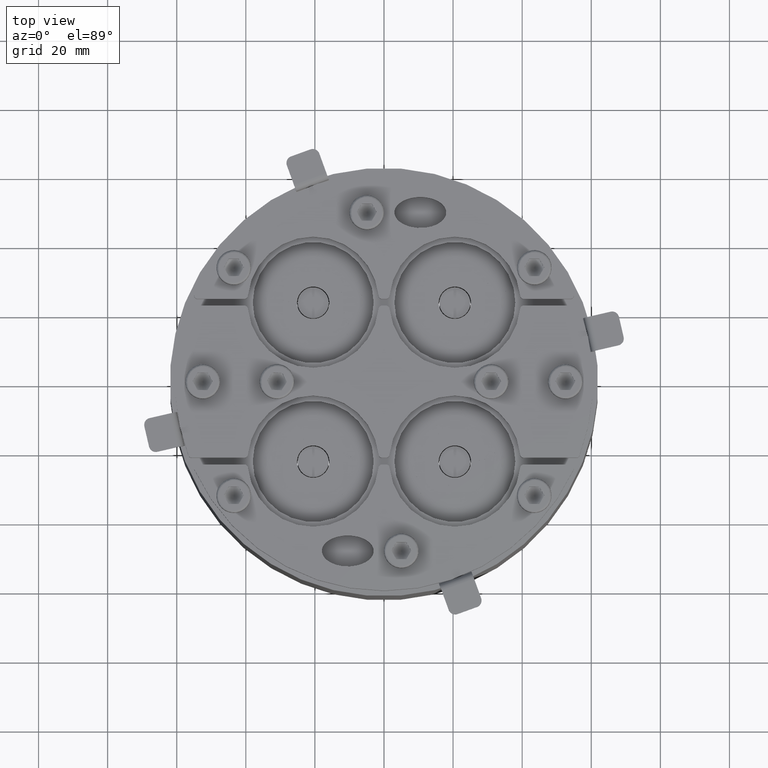
[diagram: clean part render]
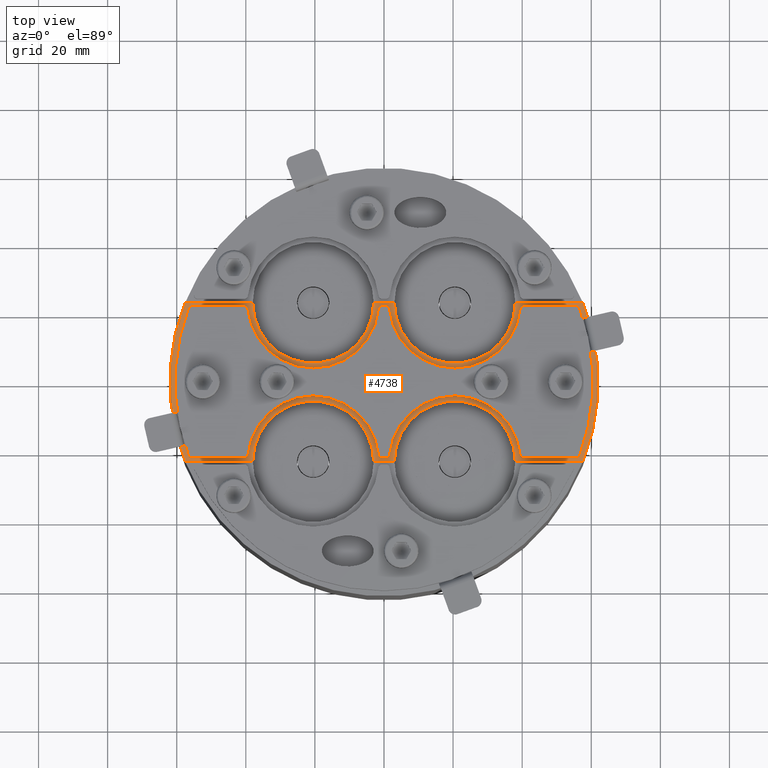
[diagram: same view with one face highlighted and labeled with its STEP entity id]
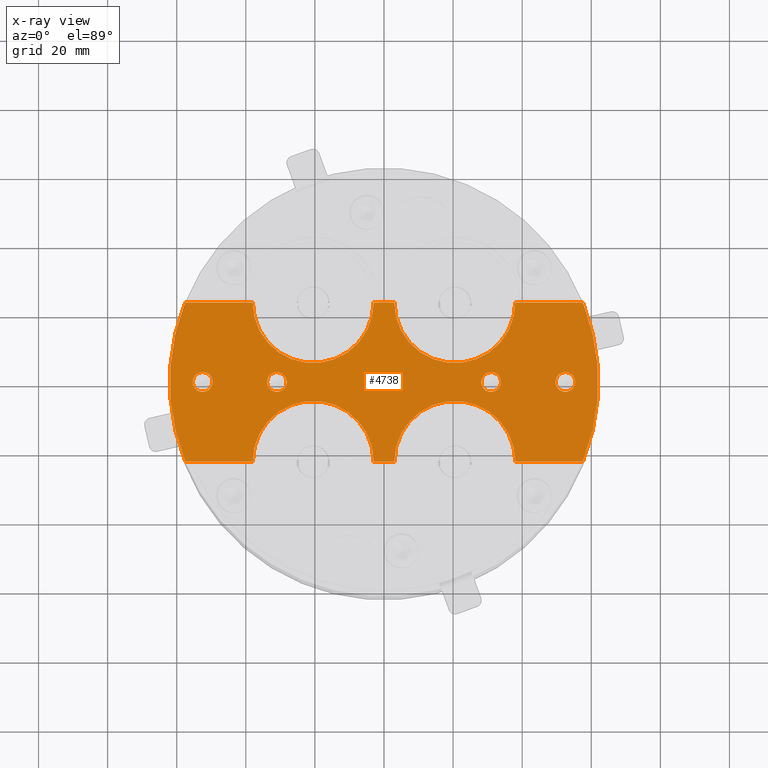
[diagram: x-ray of the same camera — body ghosted, the highlighted face saturated]
A machine part, top view. The second image highlights one B-rep face of the part: STEP entity #4738.
The next image is the same camera in x-ray: the body ghosted, the highlighted face saturated — about 0% of this face is hidden behind the body in this view.
In plain terms, the highlighted planar face has unit normal (0, -0, 1).
Its self-contained STEP definition (entity closure, byte-faithful):
#379=FACE_BOUND('',#998,.T.);
#380=FACE_BOUND('',#999,.T.);
#381=FACE_BOUND('',#1000,.T.);
#382=FACE_BOUND('',#1001,.T.);
#460=PLANE('',#5472);
#693=FACE_OUTER_BOUND('',#997,.T.);
#997=EDGE_LOOP('',(#3975,#3976,#3977,#3978,#3979,#3980,#3981,#3982,#3983,
#3984,#3985,#3986));
#998=EDGE_LOOP('',(#3987));
#999=EDGE_LOOP('',(#3988));
#1000=EDGE_LOOP('',(#3989));
#1001=EDGE_LOOP('',(#3990));
#1324=LINE('',#8067,#1691);
#1328=LINE('',#8079,#1695);
#1332=LINE('',#8091,#1699);
#1336=LINE('',#8103,#1703);
#1340=LINE('',#8115,#1707);
#1344=LINE('',#8127,#1711);
#1691=VECTOR('',#6568,10.);
#1695=VECTOR('',#6580,10.);
#1699=VECTOR('',#6592,10.);
#1703=VECTOR('',#6604,10.);
#1707=VECTOR('',#6616,10.);
#1711=VECTOR('',#6628,10.);
#2022=CIRCLE('',#5438,2.85);
#2024=CIRCLE('',#5441,2.85);
#2026=CIRCLE('',#5444,2.85);
#2028=CIRCLE('',#5447,2.85);
#2030=CIRCLE('',#5451,17.5);
#2032=CIRCLE('',#5455,17.5);
#2034=CIRCLE('',#5459,62.);
#2036=CIRCLE('',#5463,17.5);
#2038=CIRCLE('',#5467,17.5);
#2040=CIRCLE('',#5471,62.);
#2358=VERTEX_POINT('',#8039);
#2360=VERTEX_POINT('',#8045);
#2362=VERTEX_POINT('',#8051);
#2364=VERTEX_POINT('',#8057);
#2367=VERTEX_POINT('',#8064);
#2368=VERTEX_POINT('',#8066);
#2370=VERTEX_POINT('',#8072);
#2372=VERTEX_POINT('',#8078);
#2374=VERTEX_POINT('',#8084);
#2376=VERTEX_POINT('',#8090);
#2378=VERTEX_POINT('',#8096);
#2380=VERTEX_POINT('',#8102);
#2382=VERTEX_POINT('',#8108);
#2384=VERTEX_POINT('',#8114);
#2386=VERTEX_POINT('',#8120);
#2388=VERTEX_POINT('',#8126);
#2907=EDGE_CURVE('',#2358,#2358,#2022,.T.);
#2910=EDGE_CURVE('',#2360,#2360,#2024,.T.);
#2913=EDGE_CURVE('',#2362,#2362,#2026,.T.);
#2916=EDGE_CURVE('',#2364,#2364,#2028,.T.);
#2919=EDGE_CURVE('',#2368,#2367,#1324,.T.);
#2922=EDGE_CURVE('',#2370,#2368,#2030,.T.);
#2925=EDGE_CURVE('',#2372,#2370,#1328,.T.);
#2928=EDGE_CURVE('',#2374,#2372,#2032,.T.);
#2931=EDGE_CURVE('',#2376,#2374,#1332,.T.);
#2934=EDGE_CURVE('',#2378,#2376,#2034,.T.);
#2937=EDGE_CURVE('',#2380,#2378,#1336,.T.);
#2940=EDGE_CURVE('',#2382,#2380,#2036,.T.);
#2943=EDGE_CURVE('',#2384,#2382,#1340,.T.);
#2946=EDGE_CURVE('',#2386,#2384,#2038,.T.);
#2949=EDGE_CURVE('',#2388,#2386,#1344,.T.);
#2952=EDGE_CURVE('',#2367,#2388,#2040,.T.);
#3975=ORIENTED_EDGE('',*,*,#2952,.T.);
#3976=ORIENTED_EDGE('',*,*,#2949,.T.);
#3977=ORIENTED_EDGE('',*,*,#2946,.T.);
#3978=ORIENTED_EDGE('',*,*,#2943,.T.);
#3979=ORIENTED_EDGE('',*,*,#2940,.T.);
#3980=ORIENTED_EDGE('',*,*,#2937,.T.);
#3981=ORIENTED_EDGE('',*,*,#2934,.T.);
#3982=ORIENTED_EDGE('',*,*,#2931,.T.);
#3983=ORIENTED_EDGE('',*,*,#2928,.T.);
#3984=ORIENTED_EDGE('',*,*,#2925,.T.);
#3985=ORIENTED_EDGE('',*,*,#2922,.T.);
#3986=ORIENTED_EDGE('',*,*,#2919,.T.);
#3987=ORIENTED_EDGE('',*,*,#2907,.T.);
#3988=ORIENTED_EDGE('',*,*,#2910,.T.);
#3989=ORIENTED_EDGE('',*,*,#2913,.T.);
#3990=ORIENTED_EDGE('',*,*,#2916,.T.);
#4738=ADVANCED_FACE('',(#693,#379,#380,#381,#382),#460,.T.);
#5438=AXIS2_PLACEMENT_3D('',#8041,#6541,#6542);
#5441=AXIS2_PLACEMENT_3D('',#8047,#6548,#6549);
#5444=AXIS2_PLACEMENT_3D('',#8053,#6555,#6556);
#5447=AXIS2_PLACEMENT_3D('',#8059,#6562,#6563);
#5451=AXIS2_PLACEMENT_3D('',#8073,#6574,#6575);
#5455=AXIS2_PLACEMENT_3D('',#8085,#6586,#6587);
#5459=AXIS2_PLACEMENT_3D('',#8097,#6598,#6599);
#5463=AXIS2_PLACEMENT_3D('',#8109,#6610,#6611);
#5467=AXIS2_PLACEMENT_3D('',#8121,#6622,#6623);
#5471=AXIS2_PLACEMENT_3D('',#8131,#6634,#6635);
#5472=AXIS2_PLACEMENT_3D('',#8132,#6636,#6637);
#6541=DIRECTION('center_axis',(0.,0.,-1.));
#6542=DIRECTION('ref_axis',(1.,0.,0.));
#6548=DIRECTION('center_axis',(0.,0.,-1.));
#6549=DIRECTION('ref_axis',(1.,0.,0.));
#6555=DIRECTION('center_axis',(0.,0.,-1.));
#6556=DIRECTION('ref_axis',(1.,0.,0.));
#6562=DIRECTION('center_axis',(0.,0.,-1.));
#6563=DIRECTION('ref_axis',(1.,0.,0.));
#6568=DIRECTION('',(-1.,0.,0.));
#6574=DIRECTION('center_axis',(0.,0.,-1.));
#6575=DIRECTION('ref_axis',(-1.,0.,0.));
#6580=DIRECTION('',(-1.,0.,0.));
#6586=DIRECTION('center_axis',(0.,0.,-1.));
#6587=DIRECTION('ref_axis',(-1.,0.,0.));
#6592=DIRECTION('',(-1.,0.,0.));
#6598=DIRECTION('center_axis',(0.,0.,1.));
#6599=DIRECTION('ref_axis',(1.,0.,0.));
#6604=DIRECTION('',(1.,0.,0.));
#6610=DIRECTION('center_axis',(0.,0.,-1.));
#6611=DIRECTION('ref_axis',(-1.,0.,0.));
#6616=DIRECTION('',(1.,0.,0.));
#6622=DIRECTION('center_axis',(0.,0.,-1.));
#6623=DIRECTION('ref_axis',(-1.,0.,0.));
#6628=DIRECTION('',(1.,0.,0.));
#6634=DIRECTION('center_axis',(0.,0.,1.));
#6635=DIRECTION('ref_axis',(1.,0.,0.));
#6636=DIRECTION('center_axis',(0.,0.,1.));
#6637=DIRECTION('ref_axis',(1.,0.,0.));
#8039=CARTESIAN_POINT('',(49.65,-3.07372203517474E-14,23.));
#8041=CARTESIAN_POINT('Origin',(52.5,-3.10862446895044E-14,23.));
#8045=CARTESIAN_POINT('',(-55.35,-1.74145440562455E-14,23.));
#8047=CARTESIAN_POINT('Origin',(-52.5,-1.77635683940025E-14,23.));
#8051=CARTESIAN_POINT('',(-33.85,3.49024337756996E-16,23.));
#8053=CARTESIAN_POINT('Origin',(-31.,0.,23.));
#8057=CARTESIAN_POINT('',(28.15,3.49024337756996E-16,23.));
#8059=CARTESIAN_POINT('Origin',(31.,0.,23.));
#8064=CARTESIAN_POINT('',(-57.5760366819391,23.,23.));
#8066=CARTESIAN_POINT('',(-38.,23.,23.));
#8067=CARTESIAN_POINT('',(-38.,23.,23.));
#8072=CARTESIAN_POINT('',(-3.,23.,23.));
#8073=CARTESIAN_POINT('Origin',(-20.5,23.,23.));
#8078=CARTESIAN_POINT('',(3.00000000000001,23.,23.));
#8079=CARTESIAN_POINT('',(3.00000000000001,23.,23.));
#8084=CARTESIAN_POINT('',(38.,23.,23.));
#8085=CARTESIAN_POINT('Origin',(20.5,23.,23.));
#8090=CARTESIAN_POINT('',(57.5760366819391,23.,23.));
#8091=CARTESIAN_POINT('',(57.5760366819391,23.,23.));
#8096=CARTESIAN_POINT('',(57.5760366819391,-23.,23.));
#8097=CARTESIAN_POINT('Origin',(0.,0.,23.));
#8102=CARTESIAN_POINT('',(38.,-23.,23.));
#8103=CARTESIAN_POINT('',(38.,-23.,23.));
#8108=CARTESIAN_POINT('',(3.00000000000001,-23.,23.));
#8109=CARTESIAN_POINT('Origin',(20.5,-23.,23.));
#8114=CARTESIAN_POINT('',(-3.,-23.,23.));
#8115=CARTESIAN_POINT('',(-3.,-23.,23.));
#8120=CARTESIAN_POINT('',(-38.,-23.,23.));
#8121=CARTESIAN_POINT('Origin',(-20.5,-23.,23.));
#8126=CARTESIAN_POINT('',(-57.5760366819391,-23.,23.));
#8127=CARTESIAN_POINT('',(-57.5760366819391,-23.,23.));
#8131=CARTESIAN_POINT('Origin',(0.,0.,23.));
#8132=CARTESIAN_POINT('Origin',(-3.27009837789638E-15,-2.86133608065934E-15,
23.));